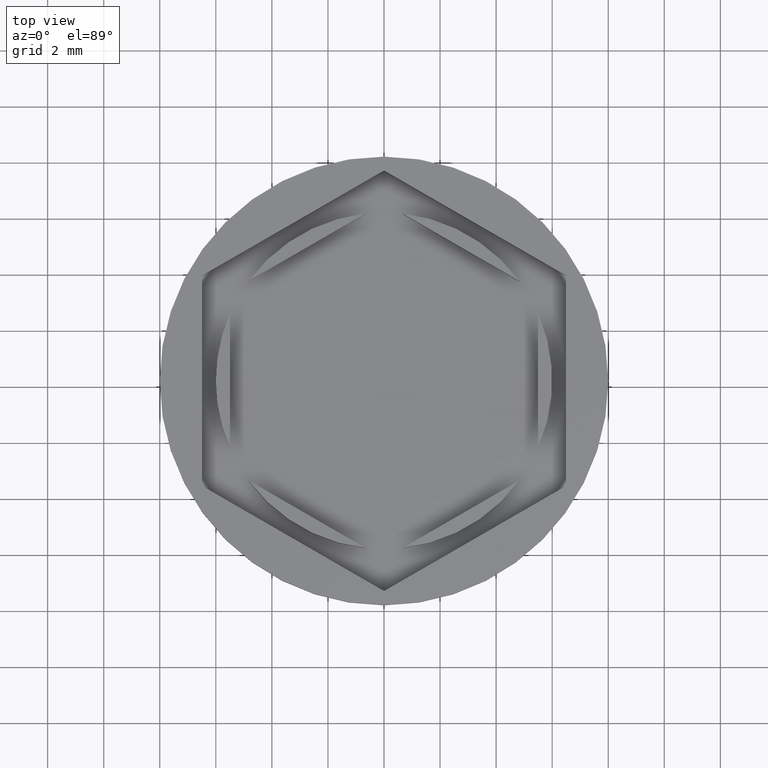
[diagram: clean part render]
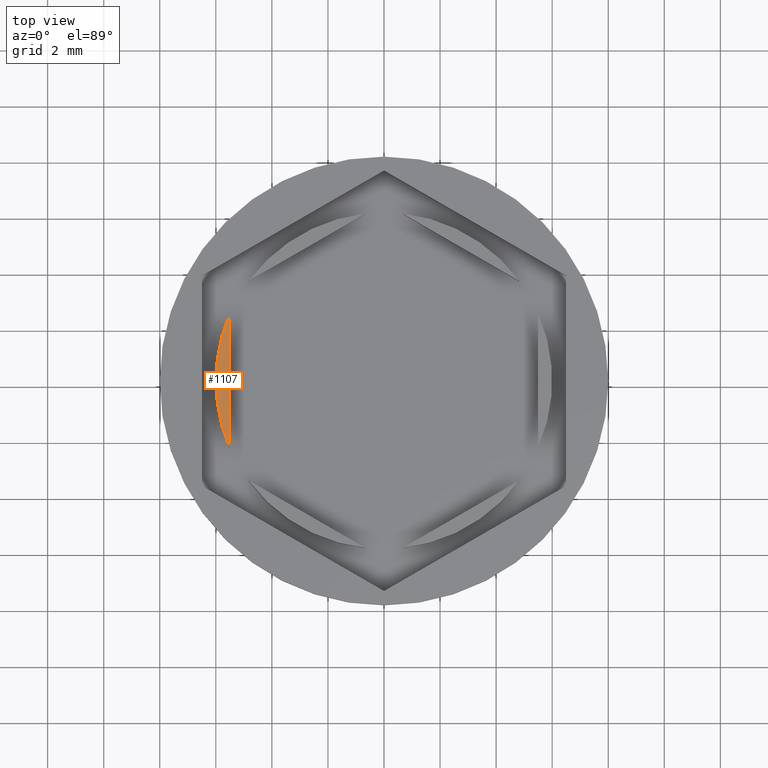
[diagram: same view with one face highlighted and labeled with its STEP entity id]
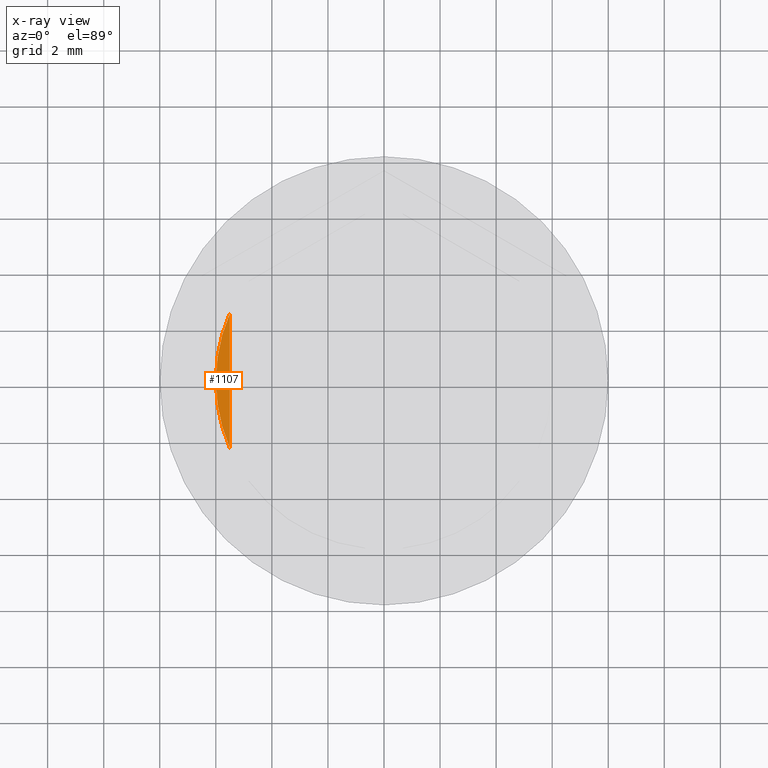
[diagram: x-ray of the same camera — body ghosted, the highlighted face saturated]
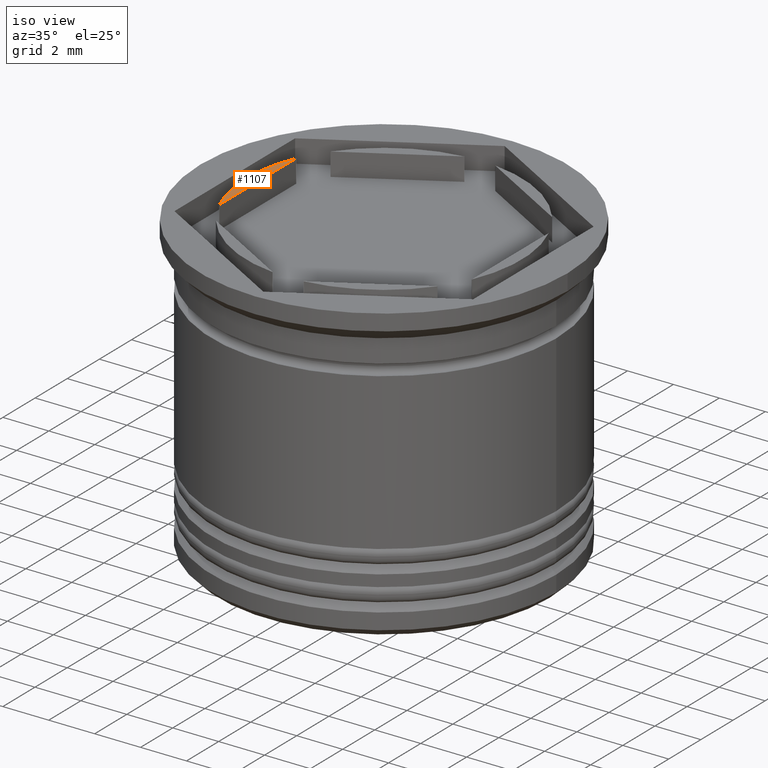
[diagram: same view with one face highlighted and labeled with its STEP entity id]
A machine part, top view. The second image highlights one B-rep face of the part: STEP entity #1107.
The next image is the same camera in x-ray: the body ghosted, the highlighted face saturated — about 0% of this face is hidden behind the body in this view.
A second angle (iso view) of the same face is appended — the face is thin or edge-on in the first view.
In plain terms, the highlighted planar face has unit normal (0, -0, 1).
Its self-contained STEP definition (entity closure, byte-faithful):
#25 = VERTEX_POINT ( 'NONE', #48 ) ;
#48 = CARTESIAN_POINT ( 'NONE',  ( -6.000000000000000888, 0.000000000000000000, 0.000000000000000000 ) ) ;
#71 = AXIS2_PLACEMENT_3D ( 'NONE', #1385, #1220, #157 ) ;
#79 = ORIENTED_EDGE ( 'NONE', *, *, #278, .T. ) ;
#157 = DIRECTION ( 'NONE',  ( 1.000000000000000000, 0.000000000000000000, 0.000000000000000000 ) ) ;
#191 = CIRCLE ( 'NONE', #71, 6.000000000000000888 ) ;
#227 = CARTESIAN_POINT ( 'NONE',  ( 0.000000000000000000, 0.000000000000000000, 0.000000000000000000 ) ) ;
#228 = CARTESIAN_POINT ( 'NONE',  ( -5.500000000000001776, 2.397915761656359113, 0.000000000000000000 ) ) ;
#278 = EDGE_CURVE ( 'NONE', #1632, #25, #635, .T. ) ;
#635 = CIRCLE ( 'NONE', #1411, 6.000000000000000888 ) ;
#638 = LINE ( 'NONE', #941, #646 ) ;
#646 = VECTOR ( 'NONE', #1702, 1000.000000000000000 ) ;
#647 = FACE_OUTER_BOUND ( 'NONE', #1029, .T. ) ;
#671 = CARTESIAN_POINT ( 'NONE',  ( 0.000000000000000000, 0.000000000000000000, 0.000000000000000000 ) ) ;
#683 = VERTEX_POINT ( 'NONE', #916 ) ;
#688 = DIRECTION ( 'NONE',  ( -0.000000000000000000, -0.000000000000000000, 1.000000000000000000 ) ) ;
#725 = ORIENTED_EDGE ( 'NONE', *, *, #1879, .F. ) ;
#848 = ORIENTED_EDGE ( 'NONE', *, *, #1839, .T. ) ;
#916 = CARTESIAN_POINT ( 'NONE',  ( -5.500000000000001776, -2.397915761656357780, 0.000000000000000000 ) ) ;
#941 = CARTESIAN_POINT ( 'NONE',  ( -5.500000000000001776, 0.000000000000000000, 0.000000000000000000 ) ) ;
#1029 = EDGE_LOOP ( 'NONE', ( #725, #79, #848 ) ) ;
#1107 = ADVANCED_FACE ( 'NONE', ( #647 ), #1392, .T. ) ;
#1220 = DIRECTION ( 'NONE',  ( -0.000000000000000000, -0.000000000000000000, 1.000000000000000000 ) ) ;
#1231 = DIRECTION ( 'NONE',  ( 1.000000000000000000, 0.000000000000000000, 0.000000000000000000 ) ) ;
#1385 = CARTESIAN_POINT ( 'NONE',  ( 0.000000000000000000, 0.000000000000000000, 0.000000000000000000 ) ) ;
#1392 = PLANE ( 'NONE',  #1448 ) ;
#1411 = AXIS2_PLACEMENT_3D ( 'NONE', #227, #688, #1757 ) ;
#1448 = AXIS2_PLACEMENT_3D ( 'NONE', #671, #1859, #1231 ) ;
#1632 = VERTEX_POINT ( 'NONE', #228 ) ;
#1702 = DIRECTION ( 'NONE',  ( 0.000000000000000000, -1.000000000000000000, 0.000000000000000000 ) ) ;
#1757 = DIRECTION ( 'NONE',  ( 1.000000000000000000, 0.000000000000000000, 0.000000000000000000 ) ) ;
#1839 = EDGE_CURVE ( 'NONE', #25, #683, #191, .T. ) ;
#1859 = DIRECTION ( 'NONE',  ( 0.000000000000000000, -0.000000000000000000, 1.000000000000000000 ) ) ;
#1879 = EDGE_CURVE ( 'NONE', #1632, #683, #638, .T. ) ;